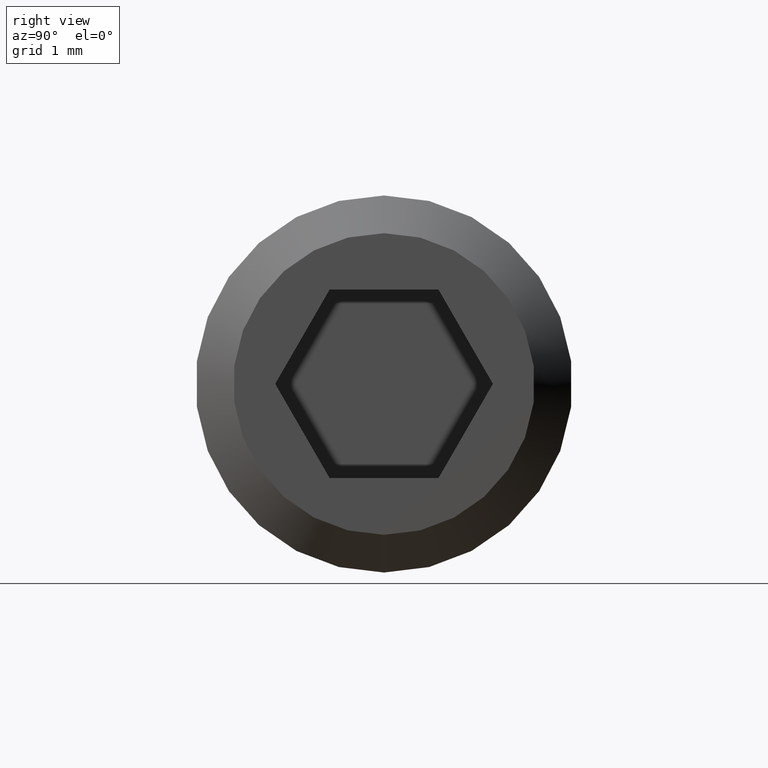
[diagram: clean part render]
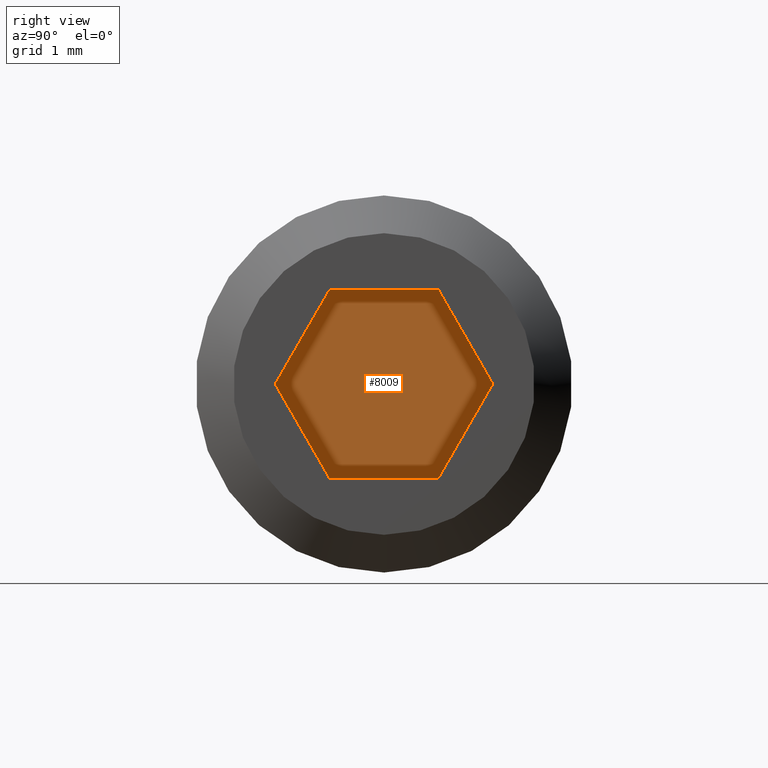
[diagram: same view with one face highlighted and labeled with its STEP entity id]
A machine part, right view. The second image highlights one B-rep face of the part: STEP entity #8009.
In plain terms, the highlighted planar face has unit normal (-1, -0, 0).
Its self-contained STEP definition (entity closure, byte-faithful):
#254 = PLANE ( 'NONE',  #9812 ) ;
#405 = LINE ( 'NONE', #9960, #10383 ) ;
#526 = ORIENTED_EDGE ( 'NONE', *, *, #588, .T. ) ;
#588 = EDGE_CURVE ( 'NONE', #3574, #1072, #8689, .T. ) ;
#869 = EDGE_CURVE ( 'NONE', #1072, #2380, #405, .T. ) ;
#991 = DIRECTION ( 'NONE',  ( 0.0000000000000000000, -1.000000000000000000, 0.0000000000000000000 ) ) ;
#1061 = VECTOR ( 'NONE', #5045, 1000.000000000000000 ) ;
#1072 = VERTEX_POINT ( 'NONE', #8646 ) ;
#1212 = ORIENTED_EDGE ( 'NONE', *, *, #9365, .T. ) ;
#1317 = LINE ( 'NONE', #4738, #3286 ) ;
#1343 = CARTESIAN_POINT ( 'NONE',  ( 4.500000000000000900, 0.8660254037844393700, 1.499999999999999800 ) ) ;
#1513 = DIRECTION ( 'NONE',  ( 0.0000000000000000000, 0.5000000000000001100, 0.8660254037844386000 ) ) ;
#1601 = ORIENTED_EDGE ( 'NONE', *, *, #2885, .T. ) ;
#1834 = ORIENTED_EDGE ( 'NONE', *, *, #869, .T. ) ;
#2008 = CARTESIAN_POINT ( 'NONE',  ( 4.500000000000000900, 1.732050807568877900, 1.891394403777266000E-016 ) ) ;
#2103 = ORIENTED_EDGE ( 'NONE', *, *, #9203, .T. ) ;
#2180 = EDGE_CURVE ( 'NONE', #2380, #3269, #7376, .T. ) ;
#2232 = CARTESIAN_POINT ( 'NONE',  ( 4.500000000000000900, -0.8660254037844380400, 1.499999999999999800 ) ) ;
#2380 = VERTEX_POINT ( 'NONE', #9559 ) ;
#2569 = CARTESIAN_POINT ( 'NONE',  ( 4.500000000000000900, -0.8660254037844388200, -1.500000000000000000 ) ) ;
#2885 = EDGE_CURVE ( 'NONE', #3269, #5603, #1317, .T. ) ;
#3269 = VERTEX_POINT ( 'NONE', #3289 ) ;
#3286 = VECTOR ( 'NONE', #1513, 1000.000000000000100 ) ;
#3289 = CARTESIAN_POINT ( 'NONE',  ( 4.500000000000000900, 0.8660254037844389300, -1.500000000000000000 ) ) ;
#3453 = VECTOR ( 'NONE', #5326, 1000.000000000000200 ) ;
#3574 = VERTEX_POINT ( 'NONE', #9474 ) ;
#4222 = EDGE_LOOP ( 'NONE', ( #526, #1834, #9726, #1601, #2103, #1212 ) ) ;
#4738 = CARTESIAN_POINT ( 'NONE',  ( 4.500000000000000900, 0.8660254037844389300, -1.500000000000000000 ) ) ;
#5040 = VECTOR ( 'NONE', #991, 1000.000000000000000 ) ;
#5045 = DIRECTION ( 'NONE',  ( 0.0000000000000000000, 1.000000000000000000, 0.0000000000000000000 ) ) ;
#5326 = DIRECTION ( 'NONE',  ( 0.0000000000000000000, -0.5000000000000000000, 0.8660254037844386000 ) ) ;
#5330 = CARTESIAN_POINT ( 'NONE',  ( 4.500000000000000900, 1.084202172485504400E-015, 2.999999999999999100 ) ) ;
#5510 = DIRECTION ( 'NONE',  ( -1.000000000000000000, -0.0000000000000000000, 0.0000000000000000000 ) ) ;
#5603 = VERTEX_POINT ( 'NONE', #2008 ) ;
#7376 = LINE ( 'NONE', #2569, #1061 ) ;
#8009 = ADVANCED_FACE ( 'NONE', ( #8210 ), #254, .F. ) ;
#8120 = DIRECTION ( 'NONE',  ( 0.0000000000000000000, -0.5000000000000002200, -0.8660254037844384900 ) ) ;
#8210 = FACE_OUTER_BOUND ( 'NONE', #4222, .T. ) ;
#8646 = CARTESIAN_POINT ( 'NONE',  ( 4.500000000000000900, -1.732050807568877000, 2.423462082778660800E-016 ) ) ;
#8689 = LINE ( 'NONE', #2232, #8819 ) ;
#8711 = DIRECTION ( 'NONE',  ( 0.0000000000000000000, 0.0000000000000000000, 1.000000000000000000 ) ) ;
#8819 = VECTOR ( 'NONE', #8120, 1000.000000000000200 ) ;
#8951 = VERTEX_POINT ( 'NONE', #1343 ) ;
#9203 = EDGE_CURVE ( 'NONE', #5603, #8951, #10137, .T. ) ;
#9242 = CARTESIAN_POINT ( 'NONE',  ( 4.500000000000000900, 0.8660254037844393700, 1.499999999999999800 ) ) ;
#9339 = DIRECTION ( 'NONE',  ( 0.0000000000000000000, 0.4999999999999997200, -0.8660254037844388200 ) ) ;
#9365 = EDGE_CURVE ( 'NONE', #8951, #3574, #9484, .T. ) ;
#9460 = CARTESIAN_POINT ( 'NONE',  ( 4.500000000000000900, 1.732050807568877900, 1.891394403777266000E-016 ) ) ;
#9474 = CARTESIAN_POINT ( 'NONE',  ( 4.500000000000000900, -0.8660254037844380400, 1.499999999999999800 ) ) ;
#9484 = LINE ( 'NONE', #9242, #5040 ) ;
#9559 = CARTESIAN_POINT ( 'NONE',  ( 4.500000000000000900, -0.8660254037844388200, -1.500000000000000000 ) ) ;
#9726 = ORIENTED_EDGE ( 'NONE', *, *, #2180, .T. ) ;
#9812 = AXIS2_PLACEMENT_3D ( 'NONE', #5330, #5510, #8711 ) ;
#9960 = CARTESIAN_POINT ( 'NONE',  ( 4.500000000000000900, -1.732050807568877000, 2.423462082778660800E-016 ) ) ;
#10137 = LINE ( 'NONE', #9460, #3453 ) ;
#10383 = VECTOR ( 'NONE', #9339, 1000.000000000000100 ) ;